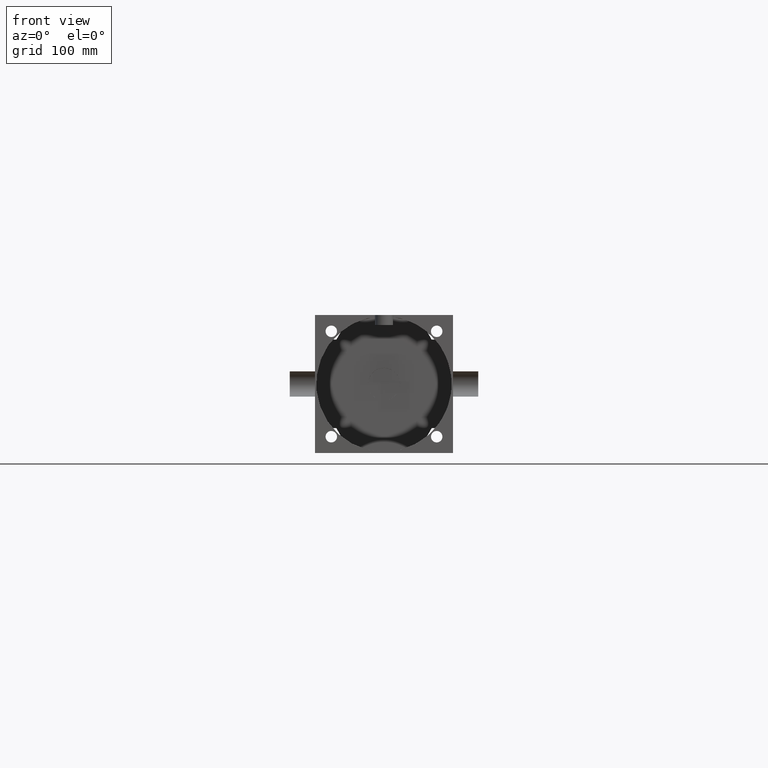
[diagram: clean part render]
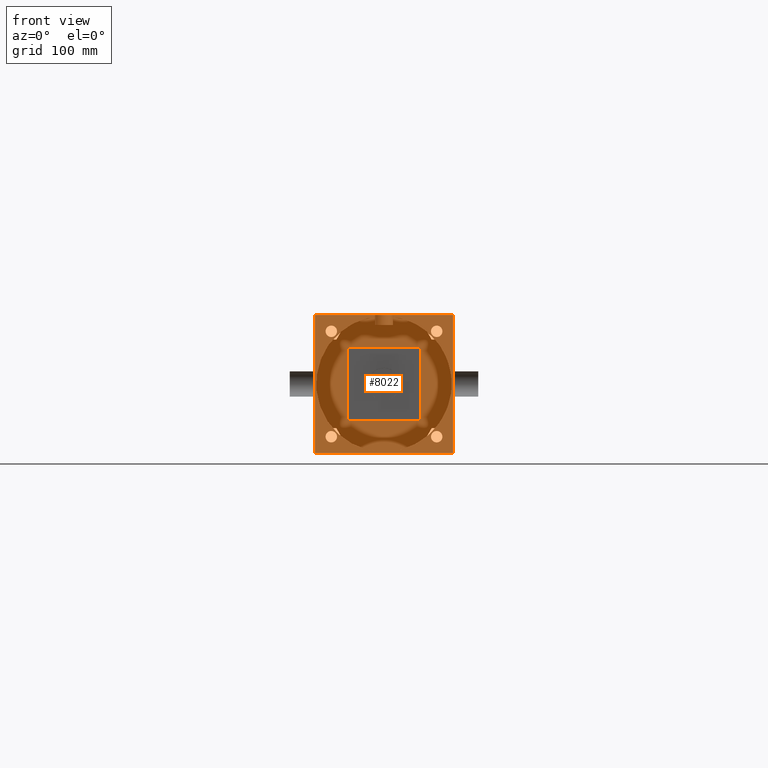
[diagram: same view with one face highlighted and labeled with its STEP entity id]
A machine part, front view. The second image highlights one B-rep face of the part: STEP entity #8022.
In plain terms, the highlighted planar face has unit normal (0, -1, 0).
Its self-contained STEP definition (entity closure, byte-faithful):
#579=VERTEX_POINT('',#580);
#580=CARTESIAN_POINT('',(9.525000000E+001,4.762500000E+001,-9.525000000E+001));
#581=EDGE_CURVE('',#586,#579,#582,.T.);
#582=LINE('',#583,#584);
#583=CARTESIAN_POINT('',(-9.525000000E+001,4.762500000E+001,-9.525000000E+001));
#584=VECTOR('',#585,1.0E+000);
#585=DIRECTION('',(1.0E+000,0.0E+000,0.0E+000));
#586=VERTEX_POINT('',#587);
#587=CARTESIAN_POINT('',(-9.525000000E+001,4.762500000E+001,-9.525000000E+001));
#620=VERTEX_POINT('',#621);
#621=CARTESIAN_POINT('',(9.525000000E+001,4.762500000E+001,9.525000000E+001));
#622=EDGE_CURVE('',#579,#620,#623,.T.);
#623=LINE('',#624,#625);
#624=CARTESIAN_POINT('',(9.525000000E+001,4.762500000E+001,-9.525000000E+001));
#625=VECTOR('',#626,1.0E+000);
#626=DIRECTION('',(0.0E+000,0.0E+000,1.0E+000));
#654=VERTEX_POINT('',#655);
#655=CARTESIAN_POINT('',(-9.525000000E+001,4.762500000E+001,9.525000000E+001));
#656=EDGE_CURVE('',#620,#654,#657,.T.);
#657=LINE('',#658,#659);
#658=CARTESIAN_POINT('',(9.525000000E+001,4.762500000E+001,9.525000000E+001));
#659=VECTOR('',#660,1.0E+000);
#660=DIRECTION('',(-1.0E+000,0.0E+000,0.0E+000));
#683=EDGE_CURVE('',#654,#586,#684,.T.);
#684=LINE('',#685,#686);
#685=CARTESIAN_POINT('',(-9.525000000E+001,4.762500000E+001,9.525000000E+001));
#686=VECTOR('',#687,1.0E+000);
#687=DIRECTION('',(0.0E+000,0.0E+000,-1.0E+000));
#992=FACE_OUTER_BOUND('',#994,.T.);
#993=FACE_BOUND('',#995,.T.);
#994=EDGE_LOOP('',(#996,#997,#998,#999));
#995=EDGE_LOOP('',(#1028,#1029,#1030,#1031));
#996=ORIENTED_EDGE('',*,*,#1000,.T.);
#997=ORIENTED_EDGE('',*,*,#1009,.T.);
#998=ORIENTED_EDGE('',*,*,#1016,.T.);
#999=ORIENTED_EDGE('',*,*,#1023,.T.);
#1000=EDGE_CURVE('',#1005,#1006,#1001,.T.);
#1001=LINE('',#1002,#1003);
#1002=CARTESIAN_POINT('',(-5.080000000E+001,4.762500000E+001,5.080000000E+001));
#1003=VECTOR('',#1004,1.0E+000);
#1004=DIRECTION('',(1.0E+000,0.0E+000,0.0E+000));
#1005=VERTEX_POINT('',#1007);
#1006=VERTEX_POINT('',#1008);
#1007=CARTESIAN_POINT('',(-5.080000000E+001,4.762500000E+001,5.080000000E+001));
#1008=CARTESIAN_POINT('',(5.080000000E+001,4.762500000E+001,5.080000000E+001));
#1009=EDGE_CURVE('',#1006,#1014,#1010,.T.);
#1010=LINE('',#1011,#1012);
#1011=CARTESIAN_POINT('',(5.080000000E+001,4.762500000E+001,5.080000000E+001));
#1012=VECTOR('',#1013,1.0E+000);
#1013=DIRECTION('',(0.0E+000,0.0E+000,-1.0E+000));
#1014=VERTEX_POINT('',#1015);
#1015=CARTESIAN_POINT('',(5.080000000E+001,4.762500000E+001,-5.080000000E+001));
#1016=EDGE_CURVE('',#1014,#1021,#1017,.T.);
#1017=LINE('',#1018,#1019);
#1018=CARTESIAN_POINT('',(5.080000000E+001,4.762500000E+001,-5.080000000E+001));
#1019=VECTOR('',#1020,1.0E+000);
#1020=DIRECTION('',(-1.0E+000,0.0E+000,0.0E+000));
#1021=VERTEX_POINT('',#1022);
#1022=CARTESIAN_POINT('',(-5.080000000E+001,4.762500000E+001,-5.080000000E+001));
#1023=EDGE_CURVE('',#1021,#1005,#1024,.T.);
#1024=LINE('',#1025,#1026);
#1025=CARTESIAN_POINT('',(-5.080000000E+001,4.762500000E+001,-5.080000000E+001));
#1026=VECTOR('',#1027,1.0E+000);
#1027=DIRECTION('',(0.0E+000,0.0E+000,1.0E+000));
#1028=ORIENTED_EDGE('',*,*,#622,.F.);
#1029=ORIENTED_EDGE('',*,*,#656,.F.);
#1030=ORIENTED_EDGE('',*,*,#683,.F.);
#1031=ORIENTED_EDGE('',*,*,#581,.F.);
#1060=PLANE('',#1061);
#1061=AXIS2_PLACEMENT_3D('',#1062,#1063,#1064);
#1062=CARTESIAN_POINT('',(9.525000000E+001,4.762500000E+001,9.525000000E+001));
#1063=DIRECTION('',(0.0E+000,-1.0E+000,0.0E+000));
#1064=DIRECTION('',(-1.0E+000,0.0E+000,0.0E+000));
#8022=ADVANCED_FACE('',(#992,#993),#1060,.T.);